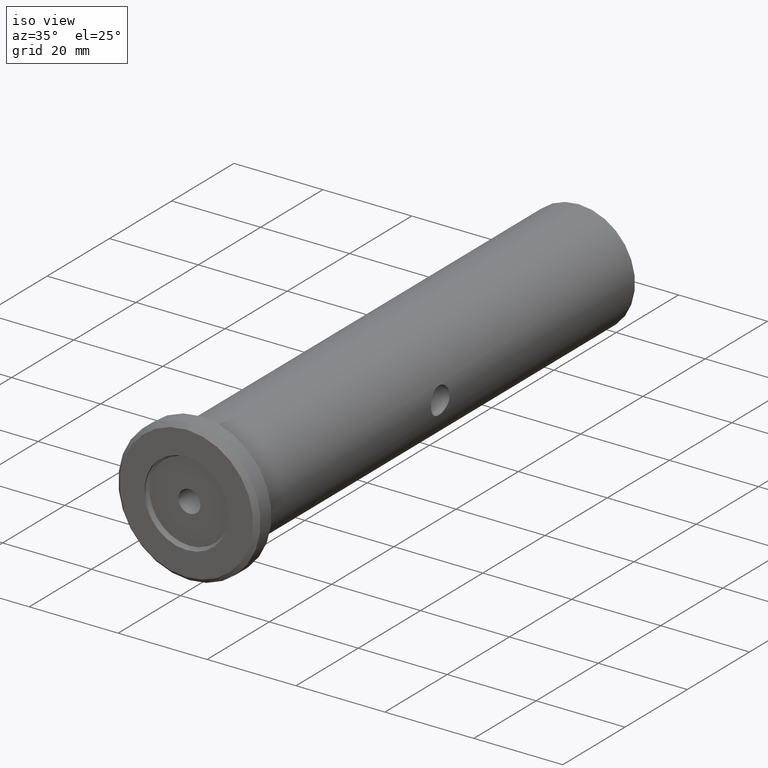
[diagram: clean part render]
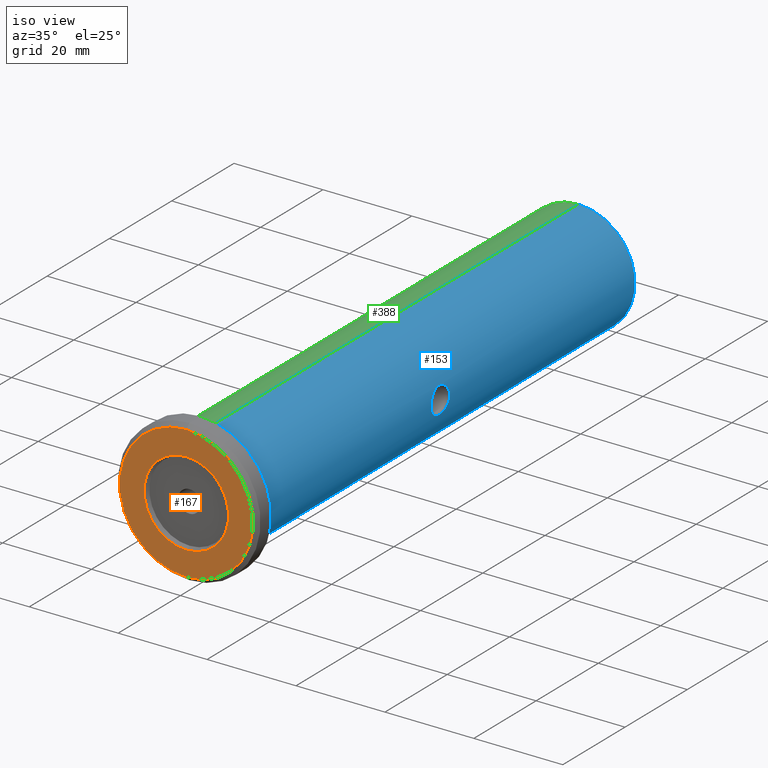
[diagram: same view with three faces highlighted in distinct colors, each labeled with its STEP entity id]
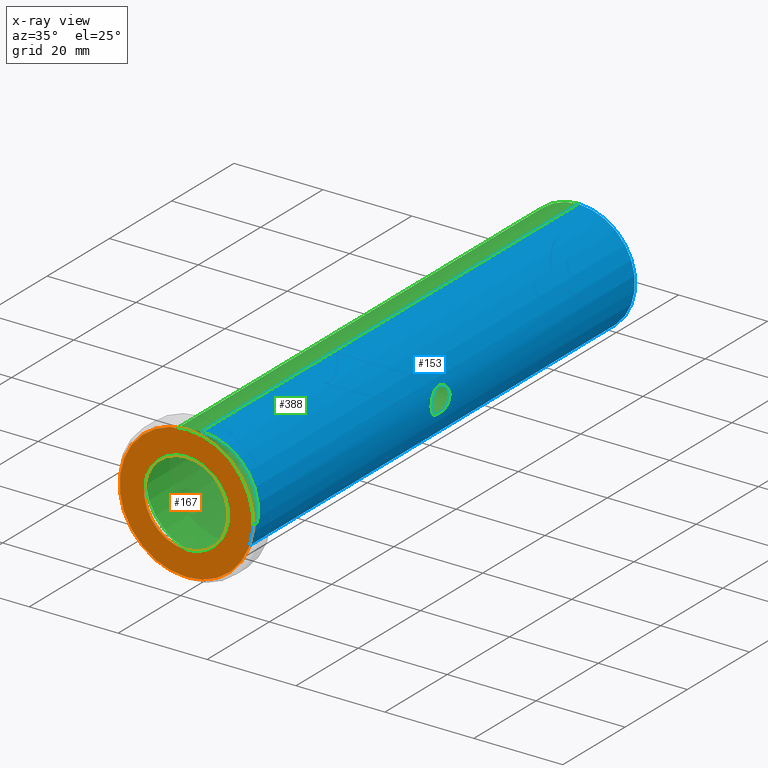
[diagram: x-ray of the same camera — body ghosted, the three highlighted faces saturated]
A machine part, iso view with three faces highlighted in distinct colors.
The next image is the same camera in x-ray (body ghosted, the three faces saturated) — at least one of them is partly hidden behind the body in this view.
Their STEP definitions:

[orange] entity #167 — the highlighted planar face has unit normal (0, 1, 0).
#36 = EDGE_LOOP ( 'NONE', ( #427, #739 ) ) ;
#47 = CIRCLE ( 'NONE', #183, 9.500000000000008900 ) ;
#49 = CARTESIAN_POINT ( 'NONE',  ( 0.0000000000000000000, -38.09999999999999400, 0.0000000000000000000 ) ) ;
#119 = DIRECTION ( 'NONE',  ( 0.0000000000000000000, 0.0000000000000000000, 1.000000000000000000 ) ) ;
#150 = VERTEX_POINT ( 'NONE', #169 ) ;
#155 = DIRECTION ( 'NONE',  ( -0.0000000000000000000, 1.000000000000000000, 0.0000000000000000000 ) ) ;
#167 = ADVANCED_FACE ( 'NONE', ( #201, #643 ), #847, .F. ) ;
#169 = CARTESIAN_POINT ( 'NONE',  ( 0.0000000000000000000, -38.09999999999999400, 15.00000000000000900 ) ) ;
#183 = AXIS2_PLACEMENT_3D ( 'NONE', #49, #616, #119 ) ;
#185 = CARTESIAN_POINT ( 'NONE',  ( 1.163414459189986700E-015, -38.09999999999999400, -9.500000000000008900 ) ) ;
#201 = FACE_BOUND ( 'NONE', #1014, .T. ) ;
#215 = ORIENTED_EDGE ( 'NONE', *, *, #613, .F. ) ;
#351 = CIRCLE ( 'NONE', #781, 15.00000000000000900 ) ;
#365 = ORIENTED_EDGE ( 'NONE', *, *, #733, .F. ) ;
#374 = EDGE_CURVE ( 'NONE', #150, #1017, #604, .T. ) ;
#427 = ORIENTED_EDGE ( 'NONE', *, *, #374, .F. ) ;
#429 = DIRECTION ( 'NONE',  ( -0.0000000000000000000, -1.000000000000000000, -0.0000000000000000000 ) ) ;
#449 = DIRECTION ( 'NONE',  ( 0.0000000000000000000, 0.0000000000000000000, 1.000000000000000000 ) ) ;
#470 = DIRECTION ( 'NONE',  ( 0.0000000000000000000, 0.0000000000000000000, 1.000000000000000000 ) ) ;
#522 = VERTEX_POINT ( 'NONE', #1006 ) ;
#549 = DIRECTION ( 'NONE',  ( 0.0000000000000000000, -0.0000000000000000000, 1.000000000000000000 ) ) ;
#564 = CARTESIAN_POINT ( 'NONE',  ( 1.898202538678398700E-015, -38.09999999999999400, -15.00000000000000900 ) ) ;
#572 = AXIS2_PLACEMENT_3D ( 'NONE', #992, #429, #449 ) ;
#580 = VERTEX_POINT ( 'NONE', #185 ) ;
#600 = AXIS2_PLACEMENT_3D ( 'NONE', #844, #838, #549 ) ;
#604 = CIRCLE ( 'NONE', #728, 15.00000000000000900 ) ;
#613 = EDGE_CURVE ( 'NONE', #580, #522, #47, .T. ) ;
#616 = DIRECTION ( 'NONE',  ( -0.0000000000000000000, -1.000000000000000000, -0.0000000000000000000 ) ) ;
#626 = CARTESIAN_POINT ( 'NONE',  ( 0.0000000000000000000, -38.09999999999999400, 0.0000000000000000000 ) ) ;
#627 = DIRECTION ( 'NONE',  ( -0.0000000000000000000, 1.000000000000000000, 0.0000000000000000000 ) ) ;
#629 = DIRECTION ( 'NONE',  ( 0.0000000000000000000, 0.0000000000000000000, 1.000000000000000000 ) ) ;
#643 = FACE_OUTER_BOUND ( 'NONE', #36, .T. ) ;
#658 = CARTESIAN_POINT ( 'NONE',  ( 0.0000000000000000000, -38.09999999999999400, 0.0000000000000000000 ) ) ;
#708 = EDGE_CURVE ( 'NONE', #1017, #150, #351, .T. ) ;
#728 = AXIS2_PLACEMENT_3D ( 'NONE', #626, #627, #629 ) ;
#733 = EDGE_CURVE ( 'NONE', #522, #580, #797, .T. ) ;
#739 = ORIENTED_EDGE ( 'NONE', *, *, #708, .F. ) ;
#781 = AXIS2_PLACEMENT_3D ( 'NONE', #658, #155, #470 ) ;
#797 = CIRCLE ( 'NONE', #572, 9.500000000000008900 ) ;
#838 = DIRECTION ( 'NONE',  ( 0.0000000000000000000, 1.000000000000000000, 0.0000000000000000000 ) ) ;
#844 = CARTESIAN_POINT ( 'NONE',  ( 9.500000000000008900, -38.10000000000000100, 0.0000000000000000000 ) ) ;
#847 = PLANE ( 'NONE',  #600 ) ;
#992 = CARTESIAN_POINT ( 'NONE',  ( 0.0000000000000000000, -38.09999999999999400, 0.0000000000000000000 ) ) ;
#1006 = CARTESIAN_POINT ( 'NONE',  ( 0.0000000000000000000, -38.09999999999999400, 9.500000000000008900 ) ) ;
#1014 = EDGE_LOOP ( 'NONE', ( #365, #215 ) ) ;
#1017 = VERTEX_POINT ( 'NONE', #564 ) ;

[blue] entity #153 — the highlighted cylindrical surface (partial cylindrical patch) has radius 12.7 mm, axis along (0, 1, 0).
#6 = ORIENTED_EDGE ( 'NONE', *, *, #1003, .F. ) ;
#8 = DIRECTION ( 'NONE',  ( 0.0000000000000000000, 1.000000000000000000, 0.0000000000000000000 ) ) ;
#15 = CARTESIAN_POINT ( 'NONE',  ( 12.34539404842547400, 25.00494987427854100, -2.980407161972675700 ) ) ;
#17 = B_SPLINE_CURVE_WITH_KNOTS ( 'NONE', 3,
 ( #350, #191, #853, #247, #764, #347, #345, #980, #403, #917, #343, #342, #488, #977, #395, #339, #335, #662, #86, #575, #334, #332, #267, #908, #912, #313, #845, #15, #484, #716 ),
 .UNSPECIFIED., .F., .F.,
 ( 4, 2, 2, 2, 2, 2, 2, 2, 2, 2, 2, 2, 2, 2, 4 ),
 ( 0.009412667079034401800, 0.01058893397553798500, 0.01117706742378977800, 0.01176520087204157100, 0.01235333432029336200, 0.01294146776854515500, 0.01411773466504873800, 0.01470586811330053300, 0.01529400156155232400, 0.01588213500980411400, 0.01647026845805590900, 0.01705840190630770000, 0.01764653535455949100, 0.01823466880281128200, 0.01882280225106307300 ),
 .UNSPECIFIED. ) ;
#23 = CARTESIAN_POINT ( 'NONE',  ( 12.34539429430230200, 25.79448423331645300, -2.980401311188668200 ) ) ;
#29 = CARTESIAN_POINT ( 'NONE',  ( 12.34058345460214700, 25.40000000000000600, 2.999999999999995600 ) ) ;
#42 = DIRECTION ( 'NONE',  ( 0.0000000000000000000, 0.0000000000000000000, 1.000000000000000000 ) ) ;
#63 = EDGE_CURVE ( 'NONE', #432, #577, #463, .T. ) ;
#86 = CARTESIAN_POINT ( 'NONE',  ( 12.61184948913362500, 22.79611745066414800, -1.502813849894429000 ) ) ;
#88 = LINE ( 'NONE', #95, #935 ) ;
#95 = CARTESIAN_POINT ( 'NONE',  ( 0.0000000000000000000, 26.50383876709786800, 12.70000000000000800 ) ) ;
#107 = ORIENTED_EDGE ( 'NONE', *, *, #900, .F. ) ;
#149 = AXIS2_PLACEMENT_3D ( 'NONE', #480, #446, #502 ) ;
#152 = CARTESIAN_POINT ( 'NONE',  ( 12.67748171377693600, 28.30343861110303600, -0.7804499343708802800 ) ) ;
#153 = ADVANCED_FACE ( 'NONE', ( #226, #408 ), #855, .T. ) ;
#160 = ORIENTED_EDGE ( 'NONE', *, *, #943, .T. ) ;
#166 = CARTESIAN_POINT ( 'NONE',  ( 12.34058345460214800, 25.59619595897743900, 2.999999999999997300 ) ) ;
#191 = CARTESIAN_POINT ( 'NONE',  ( 12.34058345460214800, 25.00771363128402300, 2.999999999999996000 ) ) ;
#197 = DIRECTION ( 'NONE',  ( 0.0000000000000000000, 1.000000000000000000, 0.0000000000000000000 ) ) ;
#214 = EDGE_LOOP ( 'NONE', ( #756, #107 ) ) ;
#223 = CIRCLE ( 'NONE', #964, 12.70000000000000800 ) ;
#226 = FACE_BOUND ( 'NONE', #214, .T. ) ;
#238 = CARTESIAN_POINT ( 'NONE',  ( 12.43094741850345600, 26.90481885423711700, -2.602666303646549800 ) ) ;
#244 = CARTESIAN_POINT ( 'NONE',  ( 12.43116662401985700, 26.90656336309533400, 2.601605836714060900 ) ) ;
#247 = CARTESIAN_POINT ( 'NONE',  ( 12.41076176351435100, 24.06983094710280100, 2.696087432792281900 ) ) ;
#267 = CARTESIAN_POINT ( 'NONE',  ( 12.47492482388632800, 23.56695435112003200, -2.383012267823717800 ) ) ;
#268 = VERTEX_POINT ( 'NONE', #570 ) ;
#310 = CARTESIAN_POINT ( 'NONE',  ( 12.37731333908835300, 26.36981324170504200, -2.845713835891872100 ) ) ;
#313 = CARTESIAN_POINT ( 'NONE',  ( 12.37755469971724900, 24.42730283577744300, -2.844655769152300500 ) ) ;
#322 = CARTESIAN_POINT ( 'NONE',  ( 12.49792670909634200, 27.38166005974738900, 2.260912276721157800 ) ) ;
#324 = EDGE_CURVE ( 'NONE', #597, #499, #919, .T. ) ;
#332 = CARTESIAN_POINT ( 'NONE',  ( 12.49844356737610200, 23.41518530320586300, -2.257971389311174800 ) ) ;
#334 = CARTESIAN_POINT ( 'NONE',  ( 12.54510018992769100, 23.13992554347235100, -1.982419639357180500 ) ) ;
#335 = CARTESIAN_POINT ( 'NONE',  ( 12.66431776804078300, 22.55389519124619100, -0.9685504591484011000 ) ) ;
#339 = CARTESIAN_POINT ( 'NONE',  ( 12.67766831579774400, 22.49575169751005200, -0.7770932324453458900 ) ) ;
#342 = CARTESIAN_POINT ( 'NONE',  ( 12.68085570871133600, 22.47835680698089400, 0.7873843855616197200 ) ) ;
#343 = CARTESIAN_POINT ( 'NONE',  ( 12.63103276044702200, 22.70584652329803900, 1.334365138730787100 ) ) ;
#345 = CARTESIAN_POINT ( 'NONE',  ( 12.49796677050642300, 23.41814038779308400, 2.260636793640887100 ) ) ;
#347 = CARTESIAN_POINT ( 'NONE',  ( 12.47468320798981300, 23.56866721992540200, 2.384247804627429400 ) ) ;
#350 = CARTESIAN_POINT ( 'NONE',  ( 12.34058345460214700, 25.40000000000000600, 2.999999999999995600 ) ) ;
#395 = CARTESIAN_POINT ( 'NONE',  ( 12.69541110465184300, 22.41925388648227700, -0.3920264036733892000 ) ) ;
#403 = CARTESIAN_POINT ( 'NONE',  ( 12.56844300761515900, 23.01524285872522000, 1.830568633040418900 ) ) ;
#404 = CARTESIAN_POINT ( 'NONE',  ( 12.66440676946796300, 28.24651208665044400, 0.9675867248049323500 ) ) ;
#408 = FACE_OUTER_BOUND ( 'NONE', #507, .T. ) ;
#418 = CARTESIAN_POINT ( 'NONE',  ( 0.0000000000000000000, 87.90000000000000600, 0.0000000000000000000 ) ) ;
#432 = VERTEX_POINT ( 'NONE', #828 ) ;
#446 = DIRECTION ( 'NONE',  ( 0.0000000000000000000, 1.000000000000000000, 0.0000000000000000000 ) ) ;
#463 = CIRCLE ( 'NONE', #149, 12.70000000000000800 ) ;
#480 = CARTESIAN_POINT ( 'NONE',  ( 0.0000000000000000000, -33.10000000000000100, 0.0000000000000000000 ) ) ;
#484 = CARTESIAN_POINT ( 'NONE',  ( 12.34058345460214300, 25.20107559665815000, -3.000000000000005300 ) ) ;
#488 = CARTESIAN_POINT ( 'NONE',  ( 12.69996635353023400, 22.40014243673072500, 0.3969109907540737100 ) ) ;
#499 = VERTEX_POINT ( 'NONE', #29 ) ;
#500 = CARTESIAN_POINT ( 'NONE',  ( 12.34058345460214500, 25.59897792628082100, -3.000000000000005300 ) ) ;
#502 = DIRECTION ( 'NONE',  ( 0.0000000000000000000, 0.0000000000000000000, 1.000000000000000000 ) ) ;
#507 = EDGE_LOOP ( 'NONE', ( #997, #160, #824, #6 ) ) ;
#510 = CARTESIAN_POINT ( 'NONE',  ( 1.555301434917139400E-015, -33.10000000000000100, -12.70000000000000800 ) ) ;
#512 = DIRECTION ( 'NONE',  ( 0.0000000000000000000, -1.000000000000000000, 0.0000000000000000000 ) ) ;
#536 = AXIS2_PLACEMENT_3D ( 'NONE', #848, #850, #42 ) ;
#540 = CARTESIAN_POINT ( 'NONE',  ( 0.0000000000000000000, 87.90000000000000600, 12.70000000000000800 ) ) ;
#563 = EDGE_CURVE ( 'NONE', #268, #1000, #223, .T. ) ;
#570 = CARTESIAN_POINT ( 'NONE',  ( 1.555301434917139400E-015, 87.90000000000000600, -12.70000000000000800 ) ) ;
#571 = VECTOR ( 'NONE', #8, 1000.000000000000000 ) ;
#575 = CARTESIAN_POINT ( 'NONE',  ( 12.56857411084801900, 23.01452059869410500, -1.829792836393118200 ) ) ;
#577 = VERTEX_POINT ( 'NONE', #510 ) ;
#597 = VERTEX_POINT ( 'NONE', #868 ) ;
#599 = DIRECTION ( 'NONE',  ( 0.0000000000000000000, 0.0000000000000000000, 1.000000000000000000 ) ) ;
#654 = CARTESIAN_POINT ( 'NONE',  ( 12.69540616597752500, 28.38072992477269500, -0.3928192765991751500 ) ) ;
#662 = CARTESIAN_POINT ( 'NONE',  ( 12.63141432737123400, 22.70407790130770600, -1.330566274978692600 ) ) ;
#664 = CARTESIAN_POINT ( 'NONE',  ( 12.34058345460214700, 25.40000000000000600, 2.999999999999995600 ) ) ;
#676 = CARTESIAN_POINT ( 'NONE',  ( 12.36380123083862300, 26.18151914268906600, 2.903100972508031200 ) ) ;
#679 = CARTESIAN_POINT ( 'NONE',  ( 12.41082553459716400, 26.73083378971680800, 2.695800476185898900 ) ) ;
#680 = CARTESIAN_POINT ( 'NONE',  ( 12.37722027103388600, 26.36856066580013200, 2.846111210040972200 ) ) ;
#681 = CARTESIAN_POINT ( 'NONE',  ( 12.54505977580016700, 27.65994011974959900, 1.982768662898588600 ) ) ;
#683 = CARTESIAN_POINT ( 'NONE',  ( 12.61142186795496800, 28.00178134450721900, 1.506246624472288100 ) ) ;
#684 = CARTESIAN_POINT ( 'NONE',  ( 12.56845845584329000, 27.78483806354889700, 1.830462364816143300 ) ) ;
#686 = CARTESIAN_POINT ( 'NONE',  ( 12.69532512922621100, 28.38038272042974700, 0.3948690995440543000 ) ) ;
#691 = CARTESIAN_POINT ( 'NONE',  ( 12.69998125227231300, 28.39992063461335900, -0.1976705434757231300 ) ) ;
#692 = CARTESIAN_POINT ( 'NONE',  ( 12.70001863278653100, 28.40007887880232900, 0.1952541387555687400 ) ) ;
#693 = CARTESIAN_POINT ( 'NONE',  ( 12.63135113081014500, 28.09562142417169600, -1.331080578736593600 ) ) ;
#695 = CARTESIAN_POINT ( 'NONE',  ( 12.47454810378221000, 27.23040335883817100, -2.384947633839924900 ) ) ;
#699 = CARTESIAN_POINT ( 'NONE',  ( 12.49830911177945900, 27.38398026125087300, -2.258721755926572900 ) ) ;
#702 = CARTESIAN_POINT ( 'NONE',  ( 12.54501379897762100, 27.65960577092166500, -1.982973375450769700 ) ) ;
#703 = CARTESIAN_POINT ( 'NONE',  ( 12.56820308289541500, 27.78354473694876200, -1.832375976632219600 ) ) ;
#705 = CARTESIAN_POINT ( 'NONE',  ( 12.61164142107485400, 28.00289379612484800, -1.504603309470567100 ) ) ;
#706 = CARTESIAN_POINT ( 'NONE',  ( 12.36364845247827300, 26.17888419229811700, -2.903747440990435800 ) ) ;
#711 = CARTESIAN_POINT ( 'NONE',  ( 12.34058345460214500, 25.40000000000000600, -3.000000000000005300 ) ) ;
#716 = CARTESIAN_POINT ( 'NONE',  ( 12.34058345460214500, 25.40000000000000600, -3.000000000000005300 ) ) ;
#743 = CARTESIAN_POINT ( 'NONE',  ( 12.66417354560177300, 28.24545867405495500, -0.9703171150653210300 ) ) ;
#756 = ORIENTED_EDGE ( 'NONE', *, *, #324, .F. ) ;
#759 = CARTESIAN_POINT ( 'NONE',  ( 12.34540943226094200, 25.79538000058199300, 2.980342611530809800 ) ) ;
#764 = CARTESIAN_POINT ( 'NONE',  ( 12.43103365166612800, 23.89445815052240000, 2.602260764166040000 ) ) ;
#824 = ORIENTED_EDGE ( 'NONE', *, *, #563, .T. ) ;
#828 = CARTESIAN_POINT ( 'NONE',  ( 0.0000000000000000000, -33.10000000000000100, 12.70000000000000800 ) ) ;
#835 = CARTESIAN_POINT ( 'NONE',  ( 12.41102950409115200, 26.73278114528720900, -2.694869083710709700 ) ) ;
#845 = CARTESIAN_POINT ( 'NONE',  ( 12.36381461348561200, 24.61819299851318000, -2.903044826625442300 ) ) ;
#848 = CARTESIAN_POINT ( 'NONE',  ( 0.0000000000000000000, 26.50383876709786800, 0.0000000000000000000 ) ) ;
#850 = DIRECTION ( 'NONE',  ( 0.0000000000000000000, 1.000000000000000000, 0.0000000000000000000 ) ) ;
#851 = CARTESIAN_POINT ( 'NONE',  ( 12.47463182756675500, 27.23092019657253700, 2.384495194046021700 ) ) ;
#853 = CARTESIAN_POINT ( 'NONE',  ( 12.36050455192010300, 24.61168444621430100, 2.920874390630891600 ) ) ;
#855 = CYLINDRICAL_SURFACE ( 'NONE', #536, 12.70000000000000800 ) ;
#868 = CARTESIAN_POINT ( 'NONE',  ( 12.34058345460214500, 25.40000000000000600, -3.000000000000005300 ) ) ;
#888 = CARTESIAN_POINT ( 'NONE',  ( 1.555301434917139400E-015, 26.50383876709786800, -12.70000000000000800 ) ) ;
#900 = EDGE_CURVE ( 'NONE', #499, #597, #17, .T. ) ;
#908 = CARTESIAN_POINT ( 'NONE',  ( 12.43104311460961000, 23.89429753717890400, -2.602242093451453200 ) ) ;
#912 = CARTESIAN_POINT ( 'NONE',  ( 12.41113163061574700, 24.06640794046133500, -2.694390179056011200 ) ) ;
#917 = CARTESIAN_POINT ( 'NONE',  ( 12.61140969090288900, 22.79827722864445500, 1.506348818880459900 ) ) ;
#919 = B_SPLINE_CURVE_WITH_KNOTS ( 'NONE', 3,
 ( #711, #500, #23, #706, #310, #835, #238, #695, #699, #702, #703, #705, #693, #743, #152, #654, #691, #692, #686, #981, #404, #920, #683, #684, #681, #322, #851, #244, #679, #680, #676, #759, #166, #664 ),
 .UNSPECIFIED., .F., .F.,
 ( 4, 2, 2, 2, 2, 2, 2, 2, 2, 2, 2, 2, 2, 2, 2, 2, 4 ),
 ( 0.0000000000000000000, 0.0005882916924396499000, 0.001176583384879299800, 0.001764875077318949600, 0.002353166769758599600, 0.002941458462198249400, 0.003529750154637899200, 0.004118041847077549000, 0.004706333539517199200, 0.005294625231956848500, 0.005882916924396498800, 0.006471208616836148100, 0.007059500309275798400, 0.007647792001715449400, 0.008236083694155099700, 0.008824375386594749900, 0.009412667079034401800 ),
 .UNSPECIFIED. ) ;
#920 = CARTESIAN_POINT ( 'NONE',  ( 12.63130768527638300, 28.09543430211596500, 1.331724090208782800 ) ) ;
#935 = VECTOR ( 'NONE', #197, 1000.000000000000000 ) ;
#943 = EDGE_CURVE ( 'NONE', #577, #268, #991, .T. ) ;
#964 = AXIS2_PLACEMENT_3D ( 'NONE', #418, #512, #599 ) ;
#977 = CARTESIAN_POINT ( 'NONE',  ( 12.70001675460108400, 22.39992907218447000, -0.1968384151971348500 ) ) ;
#980 = CARTESIAN_POINT ( 'NONE',  ( 12.54482249560000700, 23.14142399465366400, 1.984207817577002200 ) ) ;
#981 = CARTESIAN_POINT ( 'NONE',  ( 12.67747894214159700, 28.30342441815133000, 0.7802111343050236500 ) ) ;
#991 = LINE ( 'NONE', #888, #571 ) ;
#997 = ORIENTED_EDGE ( 'NONE', *, *, #63, .T. ) ;
#1000 = VERTEX_POINT ( 'NONE', #540 ) ;
#1003 = EDGE_CURVE ( 'NONE', #432, #1000, #88, .T. ) ;

[green] entity #388 — the highlighted cylindrical surface (partial cylindrical patch) has radius 12.7 mm, axis along (0, 1, 0).
#1 = CIRCLE ( 'NONE', #208, 12.70000000000000800 ) ;
#5 = CARTESIAN_POINT ( 'NONE',  ( -12.34058345460214500, 25.40000000000000600, -3.000000000000005300 ) ) ;
#7 = AXIS2_PLACEMENT_3D ( 'NONE', #232, #224, #865 ) ;
#8 = DIRECTION ( 'NONE',  ( 0.0000000000000000000, 1.000000000000000000, 0.0000000000000000000 ) ) ;
#10 = CARTESIAN_POINT ( 'NONE',  ( -12.56845845584329000, 23.01516193645112900, 1.830462364816143300 ) ) ;
#37 = CARTESIAN_POINT ( 'NONE',  ( 0.0000000000000000000, -33.10000000000000100, 0.0000000000000000000 ) ) ;
#39 = DIRECTION ( 'NONE',  ( 0.0000000000000000000, 1.000000000000000000, 0.0000000000000000000 ) ) ;
#41 = CARTESIAN_POINT ( 'NONE',  ( -12.69996635353023400, 28.39985756326927200, 0.3969109907540737100 ) ) ;
#43 = EDGE_CURVE ( 'NONE', #881, #889, #396, .T. ) ;
#53 = CARTESIAN_POINT ( 'NONE',  ( -12.34058345460214500, 25.40000000000000600, -3.000000000000005300 ) ) ;
#72 = CARTESIAN_POINT ( 'NONE',  ( -12.41076176351435100, 26.73016905289721700, 2.696087432792281900 ) ) ;
#83 = CARTESIAN_POINT ( 'NONE',  ( -12.61142186795496800, 22.79821865549279600, 1.506246624472288100 ) ) ;
#87 = EDGE_CURVE ( 'NONE', #1000, #268, #698, .T. ) ;
#88 = LINE ( 'NONE', #95, #935 ) ;
#89 = CARTESIAN_POINT ( 'NONE',  ( -12.34058345460214700, 25.40000000000000600, 2.999999999999995600 ) ) ;
#95 = CARTESIAN_POINT ( 'NONE',  ( 0.0000000000000000000, 26.50383876709786800, 12.70000000000000800 ) ) ;
#108 = CARTESIAN_POINT ( 'NONE',  ( -12.56844300761515900, 27.78475714127479500, 1.830568633040418900 ) ) ;
#116 = CARTESIAN_POINT ( 'NONE',  ( -12.43103365166612800, 26.90554184947762200, 2.602260764166040000 ) ) ;
#128 = CARTESIAN_POINT ( 'NONE',  ( -12.54482249560000700, 27.65857600534635100, 1.984207817577002200 ) ) ;
#134 = CARTESIAN_POINT ( 'NONE',  ( -12.61140969090288900, 28.00172277135555600, 1.506348818880459900 ) ) ;
#159 = CARTESIAN_POINT ( 'NONE',  ( -12.47468320798981300, 27.23133278007461300, 2.384247804627429400 ) ) ;
#162 = EDGE_CURVE ( 'NONE', #577, #432, #1, .T. ) ;
#164 = CARTESIAN_POINT ( 'NONE',  ( -12.63103276044702200, 28.09415347670196200, 1.334365138730787100 ) ) ;
#178 = CARTESIAN_POINT ( 'NONE',  ( -12.43116662401985700, 23.89343663690468500, 2.601605836714060900 ) ) ;
#188 = CARTESIAN_POINT ( 'NONE',  ( -12.68085570871133600, 28.32164319301912100, 0.7873843855616197200 ) ) ;
#196 = CARTESIAN_POINT ( 'NONE',  ( -12.63141432737123400, 28.09592209869230900, -1.330566274978692600 ) ) ;
#197 = DIRECTION ( 'NONE',  ( 0.0000000000000000000, 1.000000000000000000, 0.0000000000000000000 ) ) ;
#208 = AXIS2_PLACEMENT_3D ( 'NONE', #37, #39, #834 ) ;
#210 = CARTESIAN_POINT ( 'NONE',  ( -12.70001675460108400, 28.40007092781554500, -0.1968384151971348500 ) ) ;
#217 = CARTESIAN_POINT ( 'NONE',  ( -12.67766831579774400, 28.30424830248996300, -0.7770932324453458900 ) ) ;
#220 = CARTESIAN_POINT ( 'NONE',  ( -12.34058345460214300, 25.59892440334185400, -3.000000000000005300 ) ) ;
#224 = DIRECTION ( 'NONE',  ( 0.0000000000000000000, -1.000000000000000000, 0.0000000000000000000 ) ) ;
#231 = CARTESIAN_POINT ( 'NONE',  ( -12.47454810378221000, 23.56959664116183400, -2.384947633839924900 ) ) ;
#232 = CARTESIAN_POINT ( 'NONE',  ( 0.0000000000000000000, 87.90000000000000600, 0.0000000000000000000 ) ) ;
#240 = CARTESIAN_POINT ( 'NONE',  ( -12.34058345460214500, 25.40000000000000600, -3.000000000000005300 ) ) ;
#248 = ORIENTED_EDGE ( 'NONE', *, *, #87, .T. ) ;
#252 = CARTESIAN_POINT ( 'NONE',  ( -12.47463182756675500, 23.56907980342748800, 2.384495194046021700 ) ) ;
#258 = CARTESIAN_POINT ( 'NONE',  ( -12.69541110465184300, 28.38074611351773100, -0.3920264036733892000 ) ) ;
#265 = CARTESIAN_POINT ( 'NONE',  ( -12.47492482388632800, 27.23304564887997300, -2.383012267823717800 ) ) ;
#268 = VERTEX_POINT ( 'NONE', #570 ) ;
#272 = CARTESIAN_POINT ( 'NONE',  ( -12.66431776804078300, 28.24610480875382700, -0.9685504591484011000 ) ) ;
#275 = CARTESIAN_POINT ( 'NONE',  ( -12.43104311460961000, 26.90570246282110000, -2.602242093451453200 ) ) ;
#279 = CARTESIAN_POINT ( 'NONE',  ( -12.56857411084801900, 27.78547940130590600, -1.829792836393118200 ) ) ;
#280 = CARTESIAN_POINT ( 'NONE',  ( -12.49844356737610200, 27.38481469679414800, -2.257971389311174800 ) ) ;
#284 = CARTESIAN_POINT ( 'NONE',  ( -12.34539404842547400, 25.79505012572147400, -2.980407161972675700 ) ) ;
#293 = CARTESIAN_POINT ( 'NONE',  ( -12.37755469971724900, 26.37269716422257900, -2.844655769152300500 ) ) ;
#294 = CARTESIAN_POINT ( 'NONE',  ( -12.69998125227231300, 22.40007936538665900, -0.1976705434757231300 ) ) ;
#299 = CARTESIAN_POINT ( 'NONE',  ( -12.43094741850345600, 23.89518114576289100, -2.602666303646549800 ) ) ;
#309 = B_SPLINE_CURVE_WITH_KNOTS ( 'NONE', 3,
 ( #5, #560, #961, #899, #378, #552, #299, #231, #822, #545, #467, #372, #959, #541, #897, #819, #294, #539, #479, #384, #968, #538, #83, #10, #567, #910, #252, #178, #770, #537, #927, #861, #327, #535 ),
 .UNSPECIFIED., .F., .F.,
 ( 4, 2, 2, 2, 2, 2, 2, 2, 2, 2, 2, 2, 2, 2, 2, 2, 4 ),
 ( 0.0000000000000000000, 0.0005882916924396499000, 0.001176583384879299800, 0.001764875077318949600, 0.002353166769758599600, 0.002941458462198249400, 0.003529750154637899200, 0.004118041847077549000, 0.004706333539517199200, 0.005294625231956848500, 0.005882916924396498800, 0.006471208616836148100, 0.007059500309275798400, 0.007647792001715449400, 0.008236083694155099700, 0.008824375386594749900, 0.009412667079034401800 ),
 .UNSPECIFIED. ) ;
#327 = CARTESIAN_POINT ( 'NONE',  ( -12.34058345460214800, 25.20380404102259000, 2.999999999999997300 ) ) ;
#340 = FACE_BOUND ( 'NONE', #976, .T. ) ;
#356 = CARTESIAN_POINT ( 'NONE',  ( -12.34058345460214700, 25.40000000000000600, 2.999999999999995600 ) ) ;
#361 = FACE_OUTER_BOUND ( 'NONE', #363, .T. ) ;
#363 = EDGE_LOOP ( 'NONE', ( #896, #630, #377, #248 ) ) ;
#372 = CARTESIAN_POINT ( 'NONE',  ( -12.61164142107485400, 22.79710620387516300, -1.504603309470567100 ) ) ;
#377 = ORIENTED_EDGE ( 'NONE', *, *, #1003, .T. ) ;
#378 = CARTESIAN_POINT ( 'NONE',  ( -12.37731333908835300, 24.43018675829495500, -2.845713835891872100 ) ) ;
#384 = CARTESIAN_POINT ( 'NONE',  ( -12.67747894214159700, 22.49657558184868100, 0.7802111343050236500 ) ) ;
#388 = ADVANCED_FACE ( 'NONE', ( #361, #340 ), #974, .T. ) ;
#394 = CARTESIAN_POINT ( 'NONE',  ( -12.49796677050642300, 27.38185961220692700, 2.260636793640887100 ) ) ;
#396 = B_SPLINE_CURVE_WITH_KNOTS ( 'NONE', 3,
 ( #89, #995, #1016, #72, #116, #159, #394, #128, #108, #134, #164, #188, #41, #210, #258, #217, #272, #196, #717, #279, #948, #280, #265, #275, #466, #293, #490, #284, #220, #53 ),
 .UNSPECIFIED., .F., .F.,
 ( 4, 2, 2, 2, 2, 2, 2, 2, 2, 2, 2, 2, 2, 2, 4 ),
 ( 0.009412667079034401800, 0.01058893397553798500, 0.01117706742378977800, 0.01176520087204157100, 0.01235333432029336200, 0.01294146776854515500, 0.01411773466504873800, 0.01470586811330053300, 0.01529400156155232400, 0.01588213500980411400, 0.01647026845805590900, 0.01705840190630770000, 0.01764653535455949100, 0.01823466880281128200, 0.01882280225106307300 ),
 .UNSPECIFIED. ) ;
#432 = VERTEX_POINT ( 'NONE', #828 ) ;
#461 = EDGE_CURVE ( 'NONE', #889, #881, #309, .T. ) ;
#466 = CARTESIAN_POINT ( 'NONE',  ( -12.41113163061574700, 26.73359205953868000, -2.694390179056011200 ) ) ;
#467 = CARTESIAN_POINT ( 'NONE',  ( -12.56820308289541500, 23.01645526305124900, -1.832375976632219600 ) ) ;
#479 = CARTESIAN_POINT ( 'NONE',  ( -12.69532512922621100, 22.41961727957026800, 0.3948690995440543000 ) ) ;
#490 = CARTESIAN_POINT ( 'NONE',  ( -12.36381461348561200, 26.18180700148683500, -2.903044826625442300 ) ) ;
#510 = CARTESIAN_POINT ( 'NONE',  ( 1.555301434917139400E-015, -33.10000000000000100, -12.70000000000000800 ) ) ;
#535 = CARTESIAN_POINT ( 'NONE',  ( -12.34058345460214700, 25.40000000000000600, 2.999999999999995600 ) ) ;
#537 = CARTESIAN_POINT ( 'NONE',  ( -12.37722027103388600, 24.43143933419988300, 2.846111210040972200 ) ) ;
#538 = CARTESIAN_POINT ( 'NONE',  ( -12.63130768527638300, 22.70456569788403600, 1.331724090208782800 ) ) ;
#539 = CARTESIAN_POINT ( 'NONE',  ( -12.70001863278653100, 22.39992112119768200, 0.1952541387555687400 ) ) ;
#540 = CARTESIAN_POINT ( 'NONE',  ( 0.0000000000000000000, 87.90000000000000600, 12.70000000000000800 ) ) ;
#541 = CARTESIAN_POINT ( 'NONE',  ( -12.66417354560177300, 22.55454132594507400, -0.9703171150653210300 ) ) ;
#545 = CARTESIAN_POINT ( 'NONE',  ( -12.54501379897762100, 23.14039422907834600, -1.982973375450769700 ) ) ;
#552 = CARTESIAN_POINT ( 'NONE',  ( -12.41102950409115200, 24.06721885471278800, -2.694869083710709700 ) ) ;
#560 = CARTESIAN_POINT ( 'NONE',  ( -12.34058345460214500, 25.20102207371919800, -3.000000000000005300 ) ) ;
#567 = CARTESIAN_POINT ( 'NONE',  ( -12.54505977580016700, 23.14005988025041200, 1.982768662898588600 ) ) ;
#570 = CARTESIAN_POINT ( 'NONE',  ( 1.555301434917139400E-015, 87.90000000000000600, -12.70000000000000800 ) ) ;
#571 = VECTOR ( 'NONE', #8, 1000.000000000000000 ) ;
#577 = VERTEX_POINT ( 'NONE', #510 ) ;
#611 = ORIENTED_EDGE ( 'NONE', *, *, #43, .F. ) ;
#630 = ORIENTED_EDGE ( 'NONE', *, *, #162, .T. ) ;
#636 = DIRECTION ( 'NONE',  ( 0.0000000000000000000, 0.0000000000000000000, 1.000000000000000000 ) ) ;
#639 = CARTESIAN_POINT ( 'NONE',  ( 0.0000000000000000000, 26.50383876709786800, 0.0000000000000000000 ) ) ;
#648 = DIRECTION ( 'NONE',  ( 0.0000000000000000000, 1.000000000000000000, 0.0000000000000000000 ) ) ;
#665 = AXIS2_PLACEMENT_3D ( 'NONE', #639, #648, #636 ) ;
#698 = CIRCLE ( 'NONE', #7, 12.70000000000000800 ) ;
#717 = CARTESIAN_POINT ( 'NONE',  ( -12.61184948913362500, 28.00388254933586700, -1.502813849894429000 ) ) ;
#770 = CARTESIAN_POINT ( 'NONE',  ( -12.41082553459716400, 24.06916621028321800, 2.695800476185898900 ) ) ;
#803 = ORIENTED_EDGE ( 'NONE', *, *, #461, .F. ) ;
#819 = CARTESIAN_POINT ( 'NONE',  ( -12.69540616597752500, 22.41927007522731700, -0.3928192765991751500 ) ) ;
#822 = CARTESIAN_POINT ( 'NONE',  ( -12.49830911177945900, 23.41601973874913500, -2.258721755926572900 ) ) ;
#828 = CARTESIAN_POINT ( 'NONE',  ( 0.0000000000000000000, -33.10000000000000100, 12.70000000000000800 ) ) ;
#834 = DIRECTION ( 'NONE',  ( 0.0000000000000000000, 0.0000000000000000000, 1.000000000000000000 ) ) ;
#861 = CARTESIAN_POINT ( 'NONE',  ( -12.34540943226094200, 25.00461999941801500, 2.980342611530809800 ) ) ;
#865 = DIRECTION ( 'NONE',  ( 0.0000000000000000000, 0.0000000000000000000, 1.000000000000000000 ) ) ;
#881 = VERTEX_POINT ( 'NONE', #356 ) ;
#888 = CARTESIAN_POINT ( 'NONE',  ( 1.555301434917139400E-015, 26.50383876709786800, -12.70000000000000800 ) ) ;
#889 = VERTEX_POINT ( 'NONE', #240 ) ;
#896 = ORIENTED_EDGE ( 'NONE', *, *, #943, .F. ) ;
#897 = CARTESIAN_POINT ( 'NONE',  ( -12.67748171377693600, 22.49656138889698900, -0.7804499343708802800 ) ) ;
#899 = CARTESIAN_POINT ( 'NONE',  ( -12.36364845247827300, 24.62111580770188400, -2.903747440990435800 ) ) ;
#910 = CARTESIAN_POINT ( 'NONE',  ( -12.49792670909634200, 23.41833994025262200, 2.260912276721157800 ) ) ;
#927 = CARTESIAN_POINT ( 'NONE',  ( -12.36380123083862300, 24.61848085731096000, 2.903100972508031200 ) ) ;
#935 = VECTOR ( 'NONE', #197, 1000.000000000000000 ) ;
#943 = EDGE_CURVE ( 'NONE', #577, #268, #991, .T. ) ;
#948 = CARTESIAN_POINT ( 'NONE',  ( -12.54510018992769100, 27.66007445652766400, -1.982419639357180500 ) ) ;
#959 = CARTESIAN_POINT ( 'NONE',  ( -12.63135113081014500, 22.70437857582831100, -1.331080578736593600 ) ) ;
#961 = CARTESIAN_POINT ( 'NONE',  ( -12.34539429430230200, 25.00551576668355500, -2.980401311188668200 ) ) ;
#968 = CARTESIAN_POINT ( 'NONE',  ( -12.66440676946796300, 22.55348791334957100, 0.9675867248049323500 ) ) ;
#974 = CYLINDRICAL_SURFACE ( 'NONE', #665, 12.70000000000000800 ) ;
#976 = EDGE_LOOP ( 'NONE', ( #803, #611 ) ) ;
#991 = LINE ( 'NONE', #888, #571 ) ;
#995 = CARTESIAN_POINT ( 'NONE',  ( -12.34058345460214800, 25.79228636871600200, 2.999999999999996000 ) ) ;
#1000 = VERTEX_POINT ( 'NONE', #540 ) ;
#1003 = EDGE_CURVE ( 'NONE', #432, #1000, #88, .T. ) ;
#1016 = CARTESIAN_POINT ( 'NONE',  ( -12.36050455192010300, 26.18831555378571400, 2.920874390630891600 ) ) ;